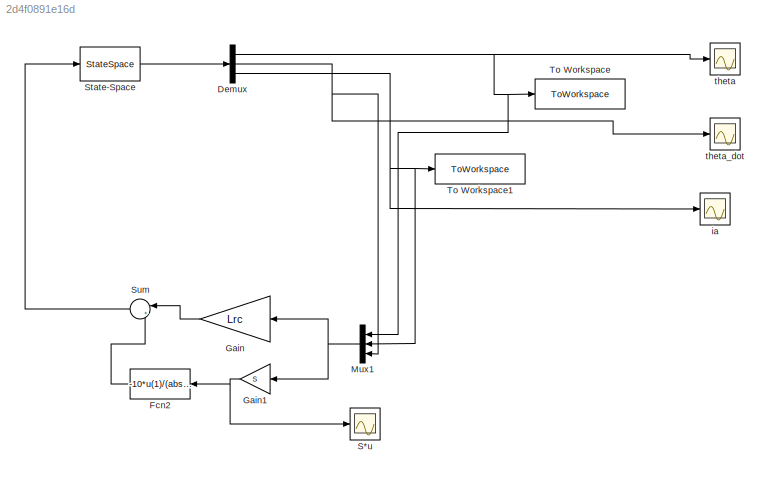
MODEL slx_2d4f0891e16d
KIND model
CONFIG AbsTol = auto
CONFIG EnableMultiTasking = off
CONFIG FixedStep = auto
CONFIG MaxStep = auto
CONFIG MinStep = auto
CONFIG RelTol = 1e-3
CONFIG SampleTimeConstraint = Unconstrained
CONFIG SolverName = VariableStepAuto
CONFIG StartTime = 0.0
CONFIG StopTime = 10.0
BLOCK [Demux] Demux
  Outputs = 3
BLOCK [Fcn] Fcn2
  Expr = -10*u(1)/(abs(u(1))+0.01)
  NameLocation = top
BLOCK [Gain] Gain
  Gain = Lrc
  Multiplication = Matrix(K*u)
BLOCK [Gain] Gain1
  Gain = S
  Multiplication = Matrix(K*u)
BLOCK [Mux] Mux1
  DisplayOption = bar
  Inputs = 3
BLOCK [Scope] S*u
  Floating = off
  NumInputPorts = 1
  ScopeSpecificationString = Simulink.scopes.TimeScopeBlockCfg('CurrentConfiguration', extmgr.ConfigurationSet(extmgr.Configuration('Core','General UI',true),extmgr.Configuration('Core','Source UI',true),extmgr.Configuration('Sources','WiredSimulink',true,'DataLoggingVariableName','ScopeData3'),extmgr.Configuration('Visuals','Time Domain',true,'SerializedDisplays',{struct('MinYLimReal','-0.11041','MaxYLimReal','1.01227','YLab...<+1401ch>
BLOCK [StateSpace] State-Space
  A = A
  B = B
  C = eye(3)
  D = [0;0;0]
  InitialCondition = [5;0;0]
  ParameterTunability = Unconstrained
BLOCK [Sum] Sum
  Inputs = |++
BLOCK [ToWorkspace] To Workspace
  FixptAsFi = on
  MaxDataPoints = inf
  SampleTime = -1
  SaveFormat = Timeseries
  VariableName = theta
BLOCK [ToWorkspace] To Workspace1
  FixptAsFi = on
  MaxDataPoints = inf
  SampleTime = -1
  SaveFormat = Timeseries
  VariableName = ia
BLOCK [Scope] ia
  Floating = off
  NumInputPorts = 1
  ScopeSpecificationString = Simulink.scopes.TimeScopeBlockCfg('CurrentConfiguration', extmgr.ConfigurationSet(extmgr.Configuration('Core','General UI',true),extmgr.Configuration('Core','Source UI',true),extmgr.Configuration('Sources','WiredSimulink',true,'DataLoggingVariableName','ScopeData2'),extmgr.Configuration('Visuals','Time Domain',true,'SerializedDisplays',{struct('MinYLimReal','-1.1767','MaxYLimReal','0.25492','YLabe...<+1362ch>
BLOCK [Scope] theta
  Floating = off
  NumInputPorts = 1
  ScopeSpecificationString = Simulink.scopes.TimeScopeBlockCfg('CurrentConfiguration', extmgr.ConfigurationSet(extmgr.Configuration('Core','General UI',true),extmgr.Configuration('Core','Source UI',true),extmgr.Configuration('Sources','WiredSimulink',true),extmgr.Configuration('Visuals','Time Domain',true,'SerializedDisplays',{struct('MinYLimReal','-0.6182','MaxYLimReal','5.62424','YLabelReal','','MinYLimMag','0.00000','MaxYL...<+1356ch>
BLOCK [Scope] theta_dot
  Floating = off
  NumInputPorts = 1
  ScopeSpecificationString = Simulink.scopes.TimeScopeBlockCfg('CurrentConfiguration', extmgr.ConfigurationSet(extmgr.Configuration('Core','General UI',true),extmgr.Configuration('Core','Source UI',true),extmgr.Configuration('Sources','WiredSimulink',true,'DataLoggingVariableName','ScopeData1'),extmgr.Configuration('Visuals','Time Domain',true,'SerializedDisplays',{struct('MinYLimReal','-3.94129','MaxYLimReal','0.43792','YLab...<+1366ch>
NET Demux:1 -> Mux1:1, To Workspace:1, theta:1
NET Demux:2 -> Mux1:3, theta_dot:1
NET Demux:3 -> Mux1:2, To Workspace1:1, ia:1
LINE Fcn2:1 -> Sum:2
NET Gain1:1 -> Fcn2:1, S*u:1
LINE Gain:1 -> Sum:1
NET Mux1:1 -> Gain1:1, Gain:1
LINE State-Space:1 -> Demux:1
LINE Sum:1 -> State-Space:1
note: NET lines group one-source signal fan-out (src -> all destinations, sorted); 1:1 wires keep LINE
